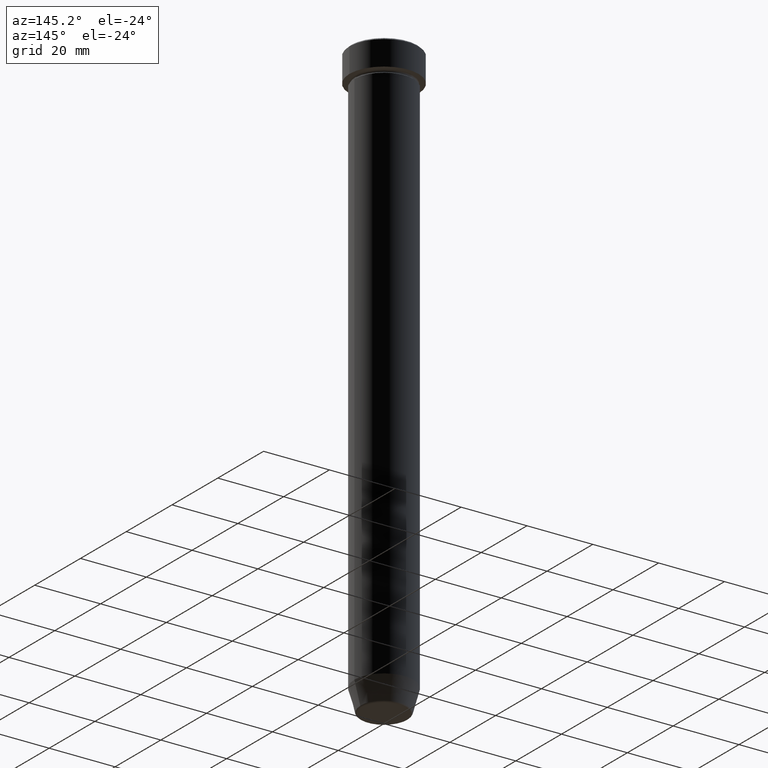
[diagram: clean part render]
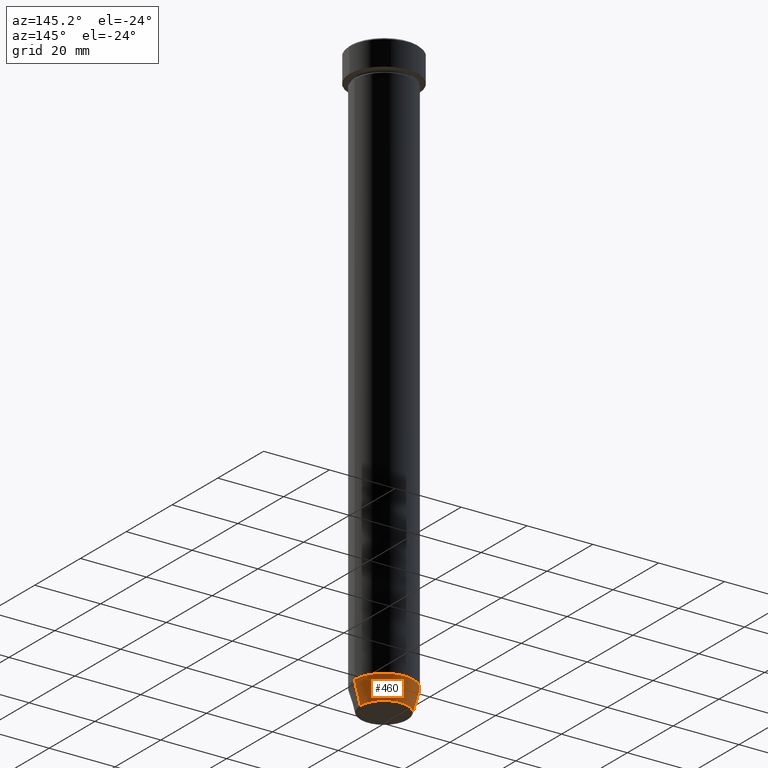
[diagram: same view with one face highlighted and labeled with its STEP entity id]
A machine part, auxiliary view. The second image highlights one B-rep face of the part: STEP entity #460.
In plain terms, the highlighted conical surface has half-angle 15 deg.
Its self-contained STEP definition (entity closure, byte-faithful):
#7 = CIRCLE ( 'NONE', #123, 9.000000000000000000 ) ;
#9 = DIRECTION ( 'NONE',  ( 0.2588190451025210725, 0.000000000000000000, 0.9659258262890680902 ) ) ;
#12 = VERTEX_POINT ( 'NONE', #341 ) ;
#37 = CIRCLE ( 'NONE', #378, 7.223655072137189492 ) ;
#55 = CARTESIAN_POINT ( 'NONE',  ( 7.124355652982136355, 0.000000000000000000, -180.0000000000000000 ) ) ;
#84 = DIRECTION ( 'NONE',  ( -0.2588190451025210725, 3.169619151431769255E-17, 0.9659258262890680902 ) ) ;
#85 = EDGE_CURVE ( 'NONE', #116, #12, #7, .T. ) ;
#107 = DIRECTION ( 'NONE',  ( 1.000000000000000000, 0.000000000000000000, 0.000000000000000000 ) ) ;
#114 = FACE_OUTER_BOUND ( 'NONE', #399, .T. ) ;
#116 = VERTEX_POINT ( 'NONE', #159 ) ;
#119 = LINE ( 'NONE', #301, #535 ) ;
#122 = VECTOR ( 'NONE', #9, 1000.000000000000114 ) ;
#123 = AXIS2_PLACEMENT_3D ( 'NONE', #349, #339, #107 ) ;
#130 = CONICAL_SURFACE ( 'NONE', #465, 7.124355652982136355, 0.2617993877991497964 ) ;
#131 = EDGE_CURVE ( 'NONE', #259, #12, #119, .T. ) ;
#159 = CARTESIAN_POINT ( 'NONE',  ( 9.000000000000000000, 0.000000000000000000, -173.0000000000000000 ) ) ;
#259 = VERTEX_POINT ( 'NONE', #360 ) ;
#274 = VERTEX_POINT ( 'NONE', #588 ) ;
#295 = DIRECTION ( 'NONE',  ( -0.000000000000000000, -0.000000000000000000, 1.000000000000000000 ) ) ;
#301 = CARTESIAN_POINT ( 'NONE',  ( -7.124355652982136355, 8.724819346411924116E-16, -180.0000000000000000 ) ) ;
#324 = ORIENTED_EDGE ( 'NONE', *, *, #559, .F. ) ;
#339 = DIRECTION ( 'NONE',  ( -0.000000000000000000, -0.000000000000000000, 1.000000000000000000 ) ) ;
#341 = CARTESIAN_POINT ( 'NONE',  ( -9.000000000000000000, 1.102182119232617714E-15, -173.0000000000000000 ) ) ;
#349 = CARTESIAN_POINT ( 'NONE',  ( 0.000000000000000000, 0.000000000000000000, -173.0000000000000000 ) ) ;
#360 = CARTESIAN_POINT ( 'NONE',  ( -7.223655072137189492, 9.934123627281763137E-16, -179.6294095225512706 ) ) ;
#378 = AXIS2_PLACEMENT_3D ( 'NONE', #472, #478, #436 ) ;
#399 = EDGE_LOOP ( 'NONE', ( #499, #421, #565, #324 ) ) ;
#421 = ORIENTED_EDGE ( 'NONE', *, *, #131, .T. ) ;
#436 = DIRECTION ( 'NONE',  ( -1.000000000000000000, 0.000000000000000000, 0.000000000000000000 ) ) ;
#460 = ADVANCED_FACE ( 'NONE', ( #114 ), #130, .T. ) ;
#465 = AXIS2_PLACEMENT_3D ( 'NONE', #569, #295, #577 ) ;
#472 = CARTESIAN_POINT ( 'NONE',  ( 0.000000000000000000, 0.000000000000000000, -179.6294095225512706 ) ) ;
#478 = DIRECTION ( 'NONE',  ( -0.000000000000000000, -0.000000000000000000, 1.000000000000000000 ) ) ;
#480 = LINE ( 'NONE', #55, #122 ) ;
#499 = ORIENTED_EDGE ( 'NONE', *, *, #549, .T. ) ;
#535 = VECTOR ( 'NONE', #84, 1000.000000000000114 ) ;
#549 = EDGE_CURVE ( 'NONE', #274, #259, #37, .T. ) ;
#559 = EDGE_CURVE ( 'NONE', #274, #116, #480, .T. ) ;
#565 = ORIENTED_EDGE ( 'NONE', *, *, #85, .F. ) ;
#569 = CARTESIAN_POINT ( 'NONE',  ( 0.000000000000000000, 0.000000000000000000, -180.0000000000000000 ) ) ;
#577 = DIRECTION ( 'NONE',  ( 1.000000000000000000, 0.000000000000000000, 0.000000000000000000 ) ) ;
#588 = CARTESIAN_POINT ( 'NONE',  ( 7.223655072137189492, 0.000000000000000000, -179.6294095225512706 ) ) ;